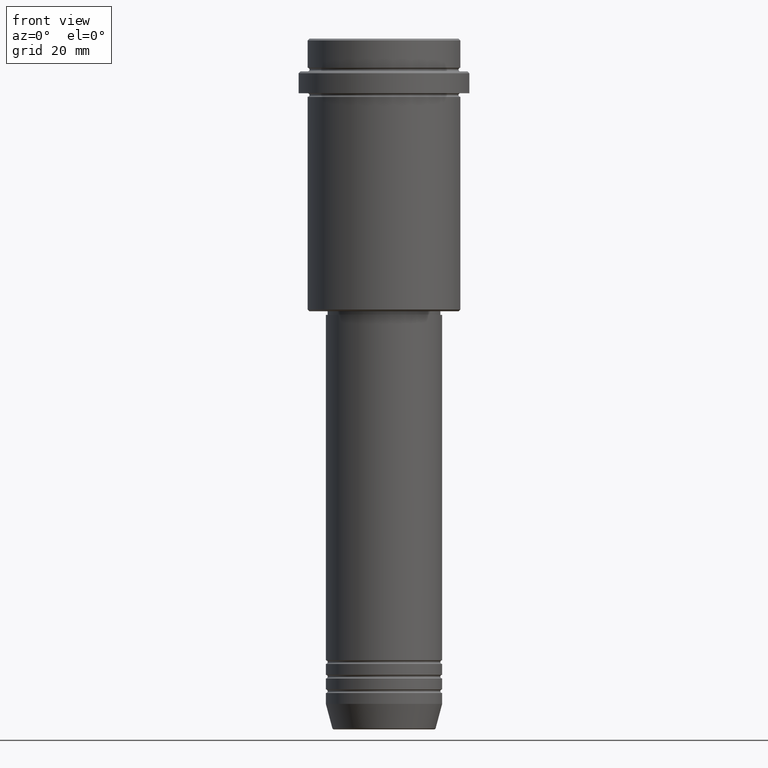
[diagram: clean part render]
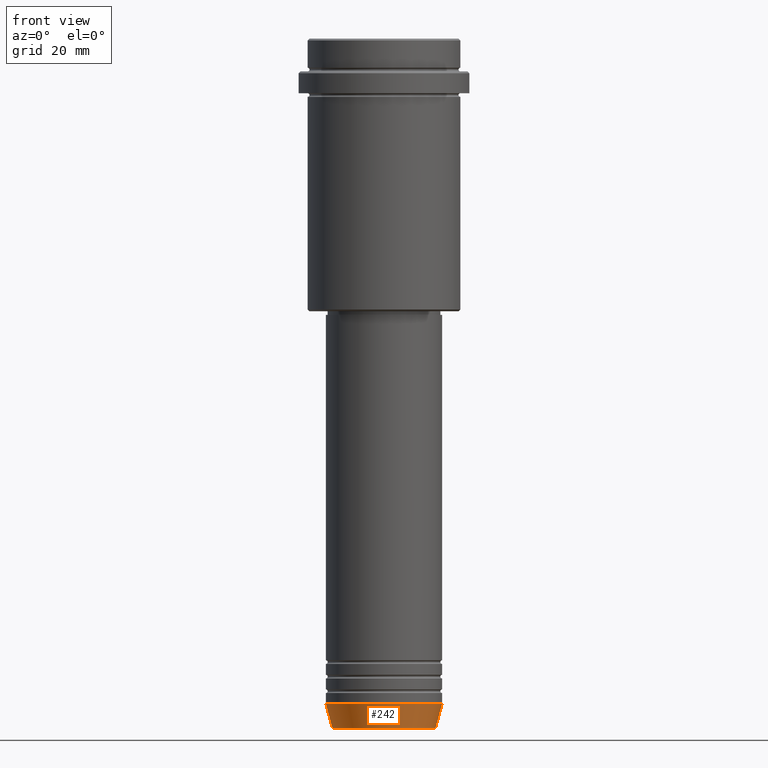
[diagram: same view with one face highlighted and labeled with its STEP entity id]
A machine part, front view. The second image highlights one B-rep face of the part: STEP entity #242.
In plain terms, the highlighted conical surface has half-angle 15 deg.
Its self-contained STEP definition (entity closure, byte-faithful):
#8 = ORIENTED_EDGE ( 'NONE', *, *, #258, .F. ) ;
#86 = ORIENTED_EDGE ( 'NONE', *, *, #281, .T. ) ;
#191 = DIRECTION ( 'NONE',  ( -0.000000000000000000, -0.000000000000000000, 1.000000000000000000 ) ) ;
#198 = ORIENTED_EDGE ( 'NONE', *, *, #1079, .F. ) ;
#202 = DIRECTION ( 'NONE',  ( -0.000000000000000000, -0.000000000000000000, 1.000000000000000000 ) ) ;
#242 = ADVANCED_FACE ( 'NONE', ( #1312 ), #1047, .T. ) ;
#244 = ORIENTED_EDGE ( 'NONE', *, *, #989, .T. ) ;
#250 = AXIS2_PLACEMENT_3D ( 'NONE', #1281, #191, #541 ) ;
#258 = EDGE_CURVE ( 'NONE', #1343, #1101, #414, .T. ) ;
#281 = EDGE_CURVE ( 'NONE', #1343, #346, #1070, .T. ) ;
#339 = AXIS2_PLACEMENT_3D ( 'NONE', #768, #202, #552 ) ;
#346 = VERTEX_POINT ( 'NONE', #648 ) ;
#401 = LINE ( 'NONE', #507, #963 ) ;
#410 = VECTOR ( 'NONE', #1396, 1000.000000000000000 ) ;
#413 = CIRCLE ( 'NONE', #889, 16.00000000000000000 ) ;
#414 = LINE ( 'NONE', #1089, #410 ) ;
#419 = CARTESIAN_POINT ( 'NONE',  ( 0.000000000000000000, 0.000000000000000000, -183.0000000000000000 ) ) ;
#507 = CARTESIAN_POINT ( 'NONE',  ( 16.00000000000000000, 0.000000000000000000, -183.0000000000000000 ) ) ;
#541 = DIRECTION ( 'NONE',  ( 1.000000000000000000, 0.000000000000000000, 0.000000000000000000 ) ) ;
#543 = DIRECTION ( 'NONE',  ( 1.000000000000000000, 0.000000000000000000, 0.000000000000000000 ) ) ;
#552 = DIRECTION ( 'NONE',  ( 1.000000000000000000, 0.000000000000000000, 0.000000000000000000 ) ) ;
#644 = VERTEX_POINT ( 'NONE', #1157 ) ;
#648 = CARTESIAN_POINT ( 'NONE',  ( 14.22365507213718772, 0.000000000000000000, -189.6294095225512422 ) ) ;
#745 = DIRECTION ( 'NONE',  ( 0.2588190451025213501, 0.000000000000000000, 0.9659258262890680902 ) ) ;
#768 = CARTESIAN_POINT ( 'NONE',  ( 0.000000000000000000, 0.000000000000000000, -183.0000000000000000 ) ) ;
#787 = CARTESIAN_POINT ( 'NONE',  ( -14.22365507213718772, 1.850665122131323337E-15, -189.6294095225512422 ) ) ;
#857 = DIRECTION ( 'NONE',  ( -0.000000000000000000, -0.000000000000000000, 1.000000000000000000 ) ) ;
#889 = AXIS2_PLACEMENT_3D ( 'NONE', #419, #857, #543 ) ;
#963 = VECTOR ( 'NONE', #745, 1000.000000000000000 ) ;
#989 = EDGE_CURVE ( 'NONE', #346, #644, #401, .T. ) ;
#1047 = CONICAL_SURFACE ( 'NONE', #339, 16.00000000000000000, 0.2617993877991500740 ) ;
#1070 = CIRCLE ( 'NONE', #250, 14.22365507213718772 ) ;
#1079 = EDGE_CURVE ( 'NONE', #1101, #644, #413, .T. ) ;
#1089 = CARTESIAN_POINT ( 'NONE',  ( -16.00000000000000000, 1.959434878635765131E-15, -183.0000000000000000 ) ) ;
#1101 = VERTEX_POINT ( 'NONE', #1289 ) ;
#1157 = CARTESIAN_POINT ( 'NONE',  ( 16.00000000000000000, 0.000000000000000000, -183.0000000000000000 ) ) ;
#1227 = EDGE_LOOP ( 'NONE', ( #8, #86, #244, #198 ) ) ;
#1281 = CARTESIAN_POINT ( 'NONE',  ( 0.000000000000000000, 0.000000000000000000, -189.6294095225512422 ) ) ;
#1289 = CARTESIAN_POINT ( 'NONE',  ( -16.00000000000000000, 1.959434878635765131E-15, -183.0000000000000000 ) ) ;
#1312 = FACE_OUTER_BOUND ( 'NONE', #1227, .T. ) ;
#1343 = VERTEX_POINT ( 'NONE', #787 ) ;
#1396 = DIRECTION ( 'NONE',  ( -0.2588190451025213501, 3.169619151431772337E-17, 0.9659258262890680902 ) ) ;